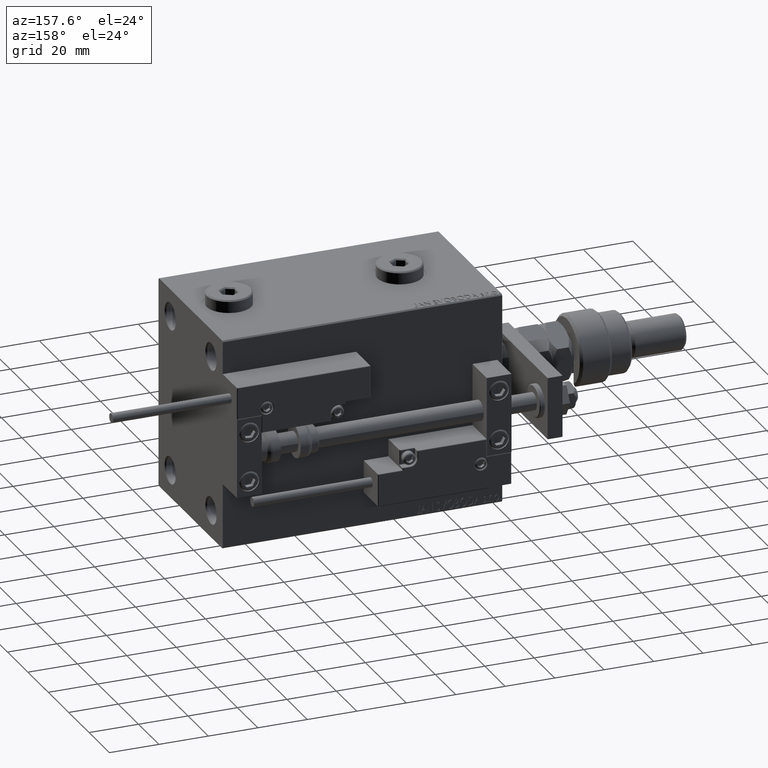
[diagram: clean part render]
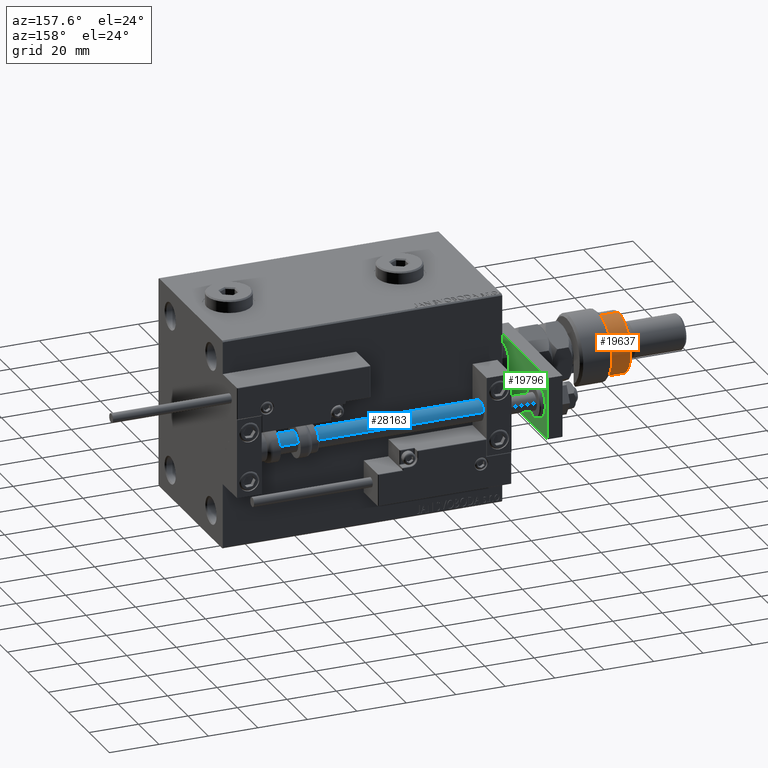
[diagram: same view with three faces highlighted in distinct colors, each labeled with its STEP entity id]
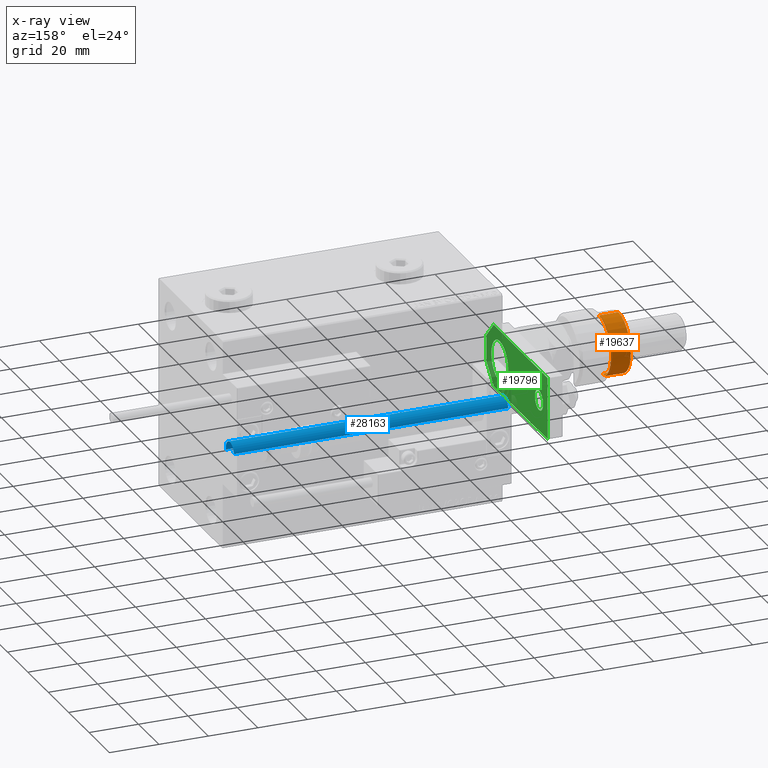
[diagram: x-ray of the same camera — body ghosted, the three highlighted faces saturated]
A machine part, auxiliary view with three faces highlighted in distinct colors.
The next image is the same camera in x-ray (body ghosted, the three faces saturated) — at least one of them is partly hidden behind the body in this view.
Their STEP definitions:

[orange] entity #19637 — the highlighted cylindrical surface (edge-blend (fillet) strip) has radius 12 mm, axis along (1, 0, -0).
#2292 = CARTESIAN_POINT ( 'NONE',  ( -10.39230484541326582, 5.999999999999998224, 14.50000000000000000 ) ) ;
#4916 = CARTESIAN_POINT ( 'NONE',  ( 0.000000000000000000, 0.000000000000000000, 22.00000000000000000 ) ) ;
#5049 = VERTEX_POINT ( 'NONE', #29937 ) ;
#6369 = LINE ( 'NONE', #29194, #35991 ) ;
#6732 = DIRECTION ( 'NONE',  ( 0.000000000000000000, 0.000000000000000000, -1.000000000000000000 ) ) ;
#8732 = EDGE_CURVE ( 'NONE', #22804, #17200, #26641, .T. ) ;
#9552 = VECTOR ( 'NONE', #23633, 1000.000000000000000 ) ;
#9678 = DIRECTION ( 'NONE',  ( -0.000000000000000000, -0.000000000000000000, -1.000000000000000000 ) ) ;
#10092 = CARTESIAN_POINT ( 'NONE',  ( 0.000000000000000000, 0.000000000000000000, 20.99999999999999645 ) ) ;
#11560 = DIRECTION ( 'NONE',  ( 0.000000000000000000, 0.000000000000000000, 1.000000000000000000 ) ) ;
#13895 = CARTESIAN_POINT ( 'NONE',  ( -12.00000000000000178, 0.000000000000000000, 22.00000000000000000 ) ) ;
#14115 = EDGE_CURVE ( 'NONE', #53550, #18924, #46160, .T. ) ;
#14704 = EDGE_CURVE ( 'NONE', #19667, #5049, #53353, .T. ) ;
#15050 = DIRECTION ( 'NONE',  ( -0.000000000000000000, -0.000000000000000000, -1.000000000000000000 ) ) ;
#15508 = ORIENTED_EDGE ( 'NONE', *, *, #49906, .F. ) ;
#17200 = VERTEX_POINT ( 'NONE', #41291 ) ;
#17347 = ORIENTED_EDGE ( 'NONE', *, *, #14704, .T. ) ;
#17988 = ORIENTED_EDGE ( 'NONE', *, *, #34253, .T. ) ;
#18486 = AXIS2_PLACEMENT_3D ( 'NONE', #10092, #39480, #51841 ) ;
#18807 = ORIENTED_EDGE ( 'NONE', *, *, #8732, .T. ) ;
#18924 = VERTEX_POINT ( 'NONE', #2292 ) ;
#19637 = ADVANCED_FACE ( 'NONE', ( #30372 ), #26457, .T. ) ;
#19667 = VERTEX_POINT ( 'NONE', #25610 ) ;
#19677 = CARTESIAN_POINT ( 'NONE',  ( 0.000000000000000000, 0.000000000000000000, 13.00000000000000000 ) ) ;
#21301 = EDGE_LOOP ( 'NONE', ( #18807, #17988, #17347, #37150, #55305, #15508 ) ) ;
#21448 = EDGE_CURVE ( 'NONE', #5049, #18924, #34664, .T. ) ;
#22804 = VERTEX_POINT ( 'NONE', #23113 ) ;
#22967 = CARTESIAN_POINT ( 'NONE',  ( 0.000000000000000000, 0.000000000000000000, 14.50000000000000000 ) ) ;
#23113 = CARTESIAN_POINT ( 'NONE',  ( -12.00000000000000178, 0.000000000000000000, 20.99999999999999645 ) ) ;
#23583 = DIRECTION ( 'NONE',  ( 1.000000000000000000, 0.000000000000000000, 0.000000000000000000 ) ) ;
#23633 = DIRECTION ( 'NONE',  ( -0.000000000000000000, -0.000000000000000000, -1.000000000000000000 ) ) ;
#25610 = CARTESIAN_POINT ( 'NONE',  ( 12.00000000000000178, 1.469576158976824144E-15, 13.00000000000000000 ) ) ;
#26457 = CYLINDRICAL_SURFACE ( 'NONE', #32857, 12.00000000000000178 ) ;
#26641 = CIRCLE ( 'NONE', #18486, 12.00000000000000178 ) ;
#29194 = CARTESIAN_POINT ( 'NONE',  ( 12.00000000000000178, 1.469576158976824144E-15, 22.00000000000000000 ) ) ;
#29937 = CARTESIAN_POINT ( 'NONE',  ( -10.39230484541326760, 6.000000000000000000, 13.00000000000000000 ) ) ;
#30088 = DIRECTION ( 'NONE',  ( -1.000000000000000000, 0.000000000000000000, 0.000000000000000000 ) ) ;
#30372 = FACE_OUTER_BOUND ( 'NONE', #21301, .T. ) ;
#31257 = CARTESIAN_POINT ( 'NONE',  ( -12.00000000000000178, 0.000000000000000000, 14.50000000000000000 ) ) ;
#32857 = AXIS2_PLACEMENT_3D ( 'NONE', #4916, #9678, #30088 ) ;
#34253 = EDGE_CURVE ( 'NONE', #17200, #19667, #6369, .T. ) ;
#34664 = LINE ( 'NONE', #52042, #51751 ) ;
#35133 = LINE ( 'NONE', #13895, #9552 ) ;
#35495 = DIRECTION ( 'NONE',  ( 0.000000000000000000, 0.000000000000000000, 1.000000000000000000 ) ) ;
#35991 = VECTOR ( 'NONE', #15050, 1000.000000000000000 ) ;
#37150 = ORIENTED_EDGE ( 'NONE', *, *, #21448, .T. ) ;
#39480 = DIRECTION ( 'NONE',  ( 0.000000000000000000, 0.000000000000000000, -1.000000000000000000 ) ) ;
#41291 = CARTESIAN_POINT ( 'NONE',  ( 12.00000000000000178, 1.469576158976824144E-15, 20.99999999999999645 ) ) ;
#46160 = CIRCLE ( 'NONE', #50620, 12.00000000000000178 ) ;
#49906 = EDGE_CURVE ( 'NONE', #22804, #53550, #35133, .T. ) ;
#50620 = AXIS2_PLACEMENT_3D ( 'NONE', #22967, #6732, #52942 ) ;
#51751 = VECTOR ( 'NONE', #35495, 1000.000000000000000 ) ;
#51841 = DIRECTION ( 'NONE',  ( 1.000000000000000000, 0.000000000000000000, 0.000000000000000000 ) ) ;
#52042 = CARTESIAN_POINT ( 'NONE',  ( -10.39230484541326760, 6.000000000000000000, 22.00000000000000000 ) ) ;
#52942 = DIRECTION ( 'NONE',  ( -1.000000000000000000, 0.000000000000000000, 0.000000000000000000 ) ) ;
#53318 = AXIS2_PLACEMENT_3D ( 'NONE', #19677, #11560, #23583 ) ;
#53353 = CIRCLE ( 'NONE', #53318, 12.00000000000000178 ) ;
#53550 = VERTEX_POINT ( 'NONE', #31257 ) ;
#55305 = ORIENTED_EDGE ( 'NONE', *, *, #14115, .F. ) ;

[blue] entity #28163 — the highlighted cylindrical surface (edge-blend (fillet) strip) has radius 4 mm, axis along (-1, -0, -0).
#876 = DIRECTION ( 'NONE',  ( -0.000000000000000000, -0.000000000000000000, -1.000000000000000000 ) ) ;
#3028 = EDGE_LOOP ( 'NONE', ( #7720, #24168, #13472, #34104 ) ) ;
#7288 = AXIS2_PLACEMENT_3D ( 'NONE', #34179, #47076, #29982 ) ;
#7720 = ORIENTED_EDGE ( 'NONE', *, *, #31611, .F. ) ;
#9996 = CIRCLE ( 'NONE', #37700, 4.000000000000000000 ) ;
#10082 = DIRECTION ( 'NONE',  ( 0.000000000000000000, 0.000000000000000000, 1.000000000000000000 ) ) ;
#11826 = VECTOR ( 'NONE', #32121, 1000.000000000000000 ) ;
#13472 = ORIENTED_EDGE ( 'NONE', *, *, #19264, .T. ) ;
#18476 = CARTESIAN_POINT ( 'NONE',  ( 0.000000000000000000, 0.000000000000000000, 113.0000000000000000 ) ) ;
#19264 = EDGE_CURVE ( 'NONE', #41244, #34618, #45328, .T. ) ;
#21188 = AXIS2_PLACEMENT_3D ( 'NONE', #34921, #26243, #51756 ) ;
#21587 = VECTOR ( 'NONE', #876, 1000.000000000000000 ) ;
#22536 = VERTEX_POINT ( 'NONE', #26627 ) ;
#22711 = FACE_OUTER_BOUND ( 'NONE', #3028, .T. ) ;
#24168 = ORIENTED_EDGE ( 'NONE', *, *, #37624, .T. ) ;
#25155 = CARTESIAN_POINT ( 'NONE',  ( 4.000000000000000000, 4.898587196589412829E-16, 2.000000000000029310 ) ) ;
#25793 = LINE ( 'NONE', #47360, #21587 ) ;
#26243 = DIRECTION ( 'NONE',  ( -0.000000000000000000, -0.000000000000000000, 1.000000000000000000 ) ) ;
#26627 = CARTESIAN_POINT ( 'NONE',  ( 4.000000000000000000, 4.898587196589412829E-16, 113.0000000000000000 ) ) ;
#27145 = DIRECTION ( 'NONE',  ( 1.000000000000000000, 0.000000000000000000, 0.000000000000000000 ) ) ;
#28163 = ADVANCED_FACE ( 'NONE', ( #22711 ), #43429, .T. ) ;
#28190 = EDGE_CURVE ( 'NONE', #37433, #34618, #25793, .T. ) ;
#29982 = DIRECTION ( 'NONE',  ( -1.000000000000000000, 0.000000000000000000, 0.000000000000000000 ) ) ;
#31611 = EDGE_CURVE ( 'NONE', #22536, #37433, #9996, .T. ) ;
#32121 = DIRECTION ( 'NONE',  ( -0.000000000000000000, -0.000000000000000000, -1.000000000000000000 ) ) ;
#34104 = ORIENTED_EDGE ( 'NONE', *, *, #28190, .F. ) ;
#34179 = CARTESIAN_POINT ( 'NONE',  ( 0.000000000000000000, 0.000000000000000000, 113.0000000000000000 ) ) ;
#34618 = VERTEX_POINT ( 'NONE', #50423 ) ;
#34921 = CARTESIAN_POINT ( 'NONE',  ( 0.000000000000000000, 0.000000000000000000, 2.000000000000029310 ) ) ;
#37433 = VERTEX_POINT ( 'NONE', #50375 ) ;
#37624 = EDGE_CURVE ( 'NONE', #22536, #41244, #44165, .T. ) ;
#37700 = AXIS2_PLACEMENT_3D ( 'NONE', #18476, #10082, #27145 ) ;
#39963 = CARTESIAN_POINT ( 'NONE',  ( 4.000000000000000000, 4.898587196589412829E-16, 113.0000000000000000 ) ) ;
#41244 = VERTEX_POINT ( 'NONE', #25155 ) ;
#43429 = CYLINDRICAL_SURFACE ( 'NONE', #7288, 4.000000000000000000 ) ;
#44165 = LINE ( 'NONE', #39963, #11826 ) ;
#45328 = CIRCLE ( 'NONE', #21188, 4.000000000000000000 ) ;
#47076 = DIRECTION ( 'NONE',  ( -0.000000000000000000, -0.000000000000000000, -1.000000000000000000 ) ) ;
#47360 = CARTESIAN_POINT ( 'NONE',  ( -4.000000000000000000, 0.000000000000000000, 113.0000000000000000 ) ) ;
#50375 = CARTESIAN_POINT ( 'NONE',  ( -4.000000000000000000, 0.000000000000000000, 113.0000000000000000 ) ) ;
#50423 = CARTESIAN_POINT ( 'NONE',  ( -4.000000000000000000, 0.000000000000000000, 2.000000000000029310 ) ) ;
#51756 = DIRECTION ( 'NONE',  ( 1.000000000000000000, 0.000000000000000000, 0.000000000000000000 ) ) ;

[green] entity #19796 — the highlighted planar face has unit normal (-1, -0, 0).
#1824 = DIRECTION ( 'NONE',  ( 0.000000000000000000, 0.000000000000000000, 1.000000000000000000 ) ) ;
#2284 = CARTESIAN_POINT ( 'NONE',  ( 12.50000000000000355, 7.000000000000006217, 0.000000000000000000 ) ) ;
#3590 = ORIENTED_EDGE ( 'NONE', *, *, #20189, .T. ) ;
#3749 = CIRCLE ( 'NONE', #41260, 4.000000000000000888 ) ;
#5117 = AXIS2_PLACEMENT_3D ( 'NONE', #11706, #6972, #36346 ) ;
#5746 = FACE_BOUND ( 'NONE', #17908, .T. ) ;
#5946 = EDGE_CURVE ( 'NONE', #7663, #46732, #14783, .T. ) ;
#6116 = VECTOR ( 'NONE', #28635, 1000.000000000000000 ) ;
#6651 = CARTESIAN_POINT ( 'NONE',  ( 12.50000000000000355, 60.00000000000000000, 0.000000000000000000 ) ) ;
#6972 = DIRECTION ( 'NONE',  ( 0.000000000000000000, 0.000000000000000000, 1.000000000000000000 ) ) ;
#7148 = LINE ( 'NONE', #24197, #31662 ) ;
#7365 = VECTOR ( 'NONE', #28298, 1000.000000000000000 ) ;
#7663 = VERTEX_POINT ( 'NONE', #9627 ) ;
#9045 = EDGE_LOOP ( 'NONE', ( #46448, #43023 ) ) ;
#9627 = CARTESIAN_POINT ( 'NONE',  ( 12.50000000000000355, 60.00000000000000000, 0.000000000000000000 ) ) ;
#10251 = EDGE_CURVE ( 'NONE', #45664, #7663, #7148, .T. ) ;
#10416 = LINE ( 'NONE', #2284, #35122 ) ;
#10660 = CARTESIAN_POINT ( 'NONE',  ( 12.50000000000000355, 7.000000000000006217, 0.000000000000000000 ) ) ;
#10776 = PLANE ( 'NONE',  #17632 ) ;
#10897 = VERTEX_POINT ( 'NONE', #25165 ) ;
#11706 = CARTESIAN_POINT ( 'NONE',  ( -1.432611055310774642E-16, 51.50000000000000000, 0.000000000000000000 ) ) ;
#12004 = CARTESIAN_POINT ( 'NONE',  ( -1.432611055310774642E-16, 51.50000000000000000, 0.000000000000000000 ) ) ;
#13210 = VECTOR ( 'NONE', #43403, 1000.000000000000000 ) ;
#14538 = ORIENTED_EDGE ( 'NONE', *, *, #10251, .F. ) ;
#14783 = LINE ( 'NONE', #6651, #45291 ) ;
#15257 = FACE_OUTER_BOUND ( 'NONE', #42000, .T. ) ;
#15509 = CARTESIAN_POINT ( 'NONE',  ( -8.250000000000000000, 12.99999999999999822, 0.000000000000000000 ) ) ;
#16483 = VERTEX_POINT ( 'NONE', #27381 ) ;
#17118 = CARTESIAN_POINT ( 'NONE',  ( -5.500000000000010658, 4.814824860968089633E-32, 0.000000000000000000 ) ) ;
#17632 = AXIS2_PLACEMENT_3D ( 'NONE', #27828, #40702, #19453 ) ;
#17664 = EDGE_CURVE ( 'NONE', #46732, #16483, #49945, .T. ) ;
#17908 = EDGE_LOOP ( 'NONE', ( #26319, #18377 ) ) ;
#18377 = ORIENTED_EDGE ( 'NONE', *, *, #36425, .T. ) ;
#19453 = DIRECTION ( 'NONE',  ( 1.000000000000000000, 0.000000000000000000, 0.000000000000000000 ) ) ;
#19706 = CARTESIAN_POINT ( 'NONE',  ( -12.49999999999999822, 60.00000000000000000, 0.000000000000000000 ) ) ;
#19796 = ADVANCED_FACE ( 'NONE', ( #15257, #5746, #39873 ), #10776, .F. ) ;
#20146 = DIRECTION ( 'NONE',  ( 0.000000000000000000, 0.000000000000000000, 1.000000000000000000 ) ) ;
#20189 = EDGE_CURVE ( 'NONE', #32372, #16483, #21855, .T. ) ;
#20380 = CARTESIAN_POINT ( 'NONE',  ( 5.499999999999976907, 4.814824860968089633E-32, 0.000000000000000000 ) ) ;
#20892 = EDGE_CURVE ( 'NONE', #47482, #53877, #29291, .T. ) ;
#21855 = LINE ( 'NONE', #30803, #13210 ) ;
#23639 = CARTESIAN_POINT ( 'NONE',  ( -9.629649721936179265E-32, 12.99999999999999822, 0.000000000000000000 ) ) ;
#23707 = DIRECTION ( 'NONE',  ( -1.000000000000000000, 0.000000000000000000, 0.000000000000000000 ) ) ;
#24197 = CARTESIAN_POINT ( 'NONE',  ( 12.50000000000000355, 4.814824860968089633E-32, 0.000000000000000000 ) ) ;
#24437 = VERTEX_POINT ( 'NONE', #20380 ) ;
#25165 = CARTESIAN_POINT ( 'NONE',  ( -4.000000000000000888, 51.50000000000000000, 0.000000000000000000 ) ) ;
#26319 = ORIENTED_EDGE ( 'NONE', *, *, #50795, .T. ) ;
#26660 = DIRECTION ( 'NONE',  ( -0.7071067811865486830, -0.7071067811865464625, -0.000000000000000000 ) ) ;
#27381 = CARTESIAN_POINT ( 'NONE',  ( -12.50000000000000355, 7.000000000000013323, 0.000000000000000000 ) ) ;
#27828 = CARTESIAN_POINT ( 'NONE',  ( 0.000000000000000000, 0.000000000000000000, 0.000000000000000000 ) ) ;
#28298 = DIRECTION ( 'NONE',  ( 1.000000000000000000, 0.000000000000000000, 0.000000000000000000 ) ) ;
#28635 = DIRECTION ( 'NONE',  ( -8.673617379884035472E-17, -1.000000000000000000, 0.000000000000000000 ) ) ;
#28767 = ORIENTED_EDGE ( 'NONE', *, *, #17664, .F. ) ;
#29144 = CIRCLE ( 'NONE', #42527, 8.250000000000000000 ) ;
#29223 = CIRCLE ( 'NONE', #5117, 4.000000000000000888 ) ;
#29291 = CIRCLE ( 'NONE', #31107, 8.250000000000000000 ) ;
#30236 = EDGE_CURVE ( 'NONE', #32372, #24437, #40080, .T. ) ;
#30803 = CARTESIAN_POINT ( 'NONE',  ( -5.500000000000010658, 4.814824860968089633E-32, 0.000000000000000000 ) ) ;
#31107 = AXIS2_PLACEMENT_3D ( 'NONE', #23639, #1824, #35962 ) ;
#31662 = VECTOR ( 'NONE', #36247, 1000.000000000000000 ) ;
#32246 = VERTEX_POINT ( 'NONE', #40125 ) ;
#32372 = VERTEX_POINT ( 'NONE', #17118 ) ;
#32739 = CARTESIAN_POINT ( 'NONE',  ( -9.629649721936179265E-32, 12.99999999999999822, 0.000000000000000000 ) ) ;
#33418 = EDGE_CURVE ( 'NONE', #45664, #24437, #10416, .T. ) ;
#33562 = CARTESIAN_POINT ( 'NONE',  ( -12.49999999999999822, 60.00000000000000000, 0.000000000000000000 ) ) ;
#33609 = ORIENTED_EDGE ( 'NONE', *, *, #5946, .F. ) ;
#35122 = VECTOR ( 'NONE', #26660, 999.9999999999998863 ) ;
#35962 = DIRECTION ( 'NONE',  ( 1.000000000000000000, 0.000000000000000000, 0.000000000000000000 ) ) ;
#36247 = DIRECTION ( 'NONE',  ( 0.000000000000000000, 1.000000000000000000, 0.000000000000000000 ) ) ;
#36346 = DIRECTION ( 'NONE',  ( 1.000000000000000000, 0.000000000000000000, 0.000000000000000000 ) ) ;
#36425 = EDGE_CURVE ( 'NONE', #32246, #10897, #3749, .T. ) ;
#37210 = DIRECTION ( 'NONE',  ( 1.000000000000000000, 0.000000000000000000, 0.000000000000000000 ) ) ;
#37525 = CARTESIAN_POINT ( 'NONE',  ( -12.50000000000000355, 4.814824860968089633E-32, 0.000000000000000000 ) ) ;
#39873 = FACE_BOUND ( 'NONE', #9045, .T. ) ;
#40080 = LINE ( 'NONE', #37525, #7365 ) ;
#40125 = CARTESIAN_POINT ( 'NONE',  ( 4.000000000000000888, 51.50000000000000000, 0.000000000000000000 ) ) ;
#40702 = DIRECTION ( 'NONE',  ( -0.000000000000000000, 0.000000000000000000, 1.000000000000000000 ) ) ;
#41260 = AXIS2_PLACEMENT_3D ( 'NONE', #12004, #54298, #50648 ) ;
#41983 = CARTESIAN_POINT ( 'NONE',  ( 8.250000000000000000, 13.00000000000000000, 0.000000000000000000 ) ) ;
#42000 = EDGE_LOOP ( 'NONE', ( #44747, #3590, #28767, #33609, #14538, #50026 ) ) ;
#42527 = AXIS2_PLACEMENT_3D ( 'NONE', #32739, #20146, #37210 ) ;
#43023 = ORIENTED_EDGE ( 'NONE', *, *, #45728, .T. ) ;
#43403 = DIRECTION ( 'NONE',  ( -0.7071067811865465735, 0.7071067811865485719, -0.000000000000000000 ) ) ;
#44747 = ORIENTED_EDGE ( 'NONE', *, *, #30236, .F. ) ;
#45291 = VECTOR ( 'NONE', #23707, 1000.000000000000000 ) ;
#45664 = VERTEX_POINT ( 'NONE', #10660 ) ;
#45728 = EDGE_CURVE ( 'NONE', #53877, #47482, #29144, .T. ) ;
#46448 = ORIENTED_EDGE ( 'NONE', *, *, #20892, .T. ) ;
#46732 = VERTEX_POINT ( 'NONE', #33562 ) ;
#47482 = VERTEX_POINT ( 'NONE', #15509 ) ;
#49945 = LINE ( 'NONE', #19706, #6116 ) ;
#50026 = ORIENTED_EDGE ( 'NONE', *, *, #33418, .T. ) ;
#50648 = DIRECTION ( 'NONE',  ( 1.000000000000000000, 0.000000000000000000, 0.000000000000000000 ) ) ;
#50795 = EDGE_CURVE ( 'NONE', #10897, #32246, #29223, .T. ) ;
#53877 = VERTEX_POINT ( 'NONE', #41983 ) ;
#54298 = DIRECTION ( 'NONE',  ( 0.000000000000000000, 0.000000000000000000, 1.000000000000000000 ) ) ;